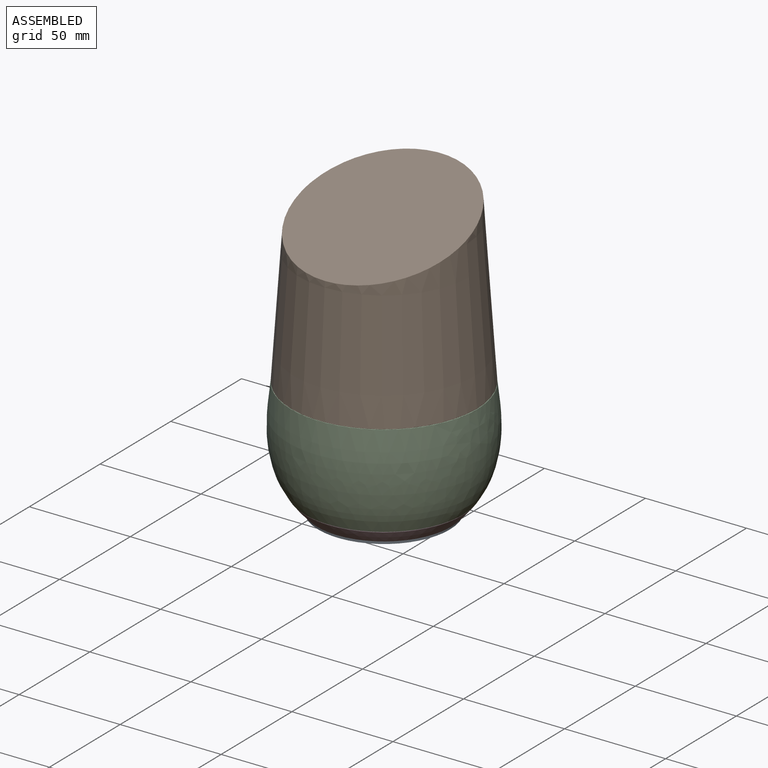
[diagram: assembled view]
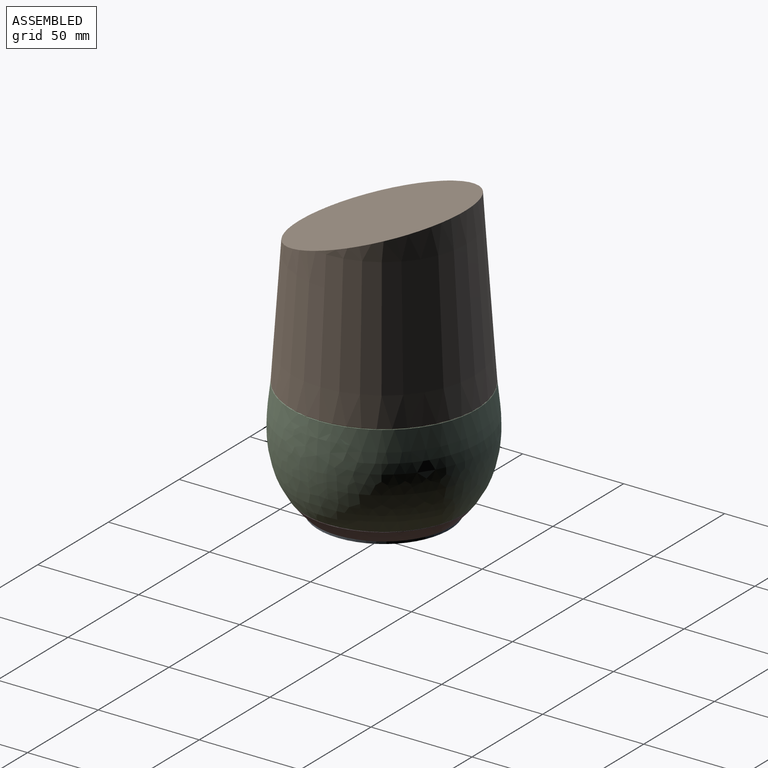
[diagram: assembled view, second angle]
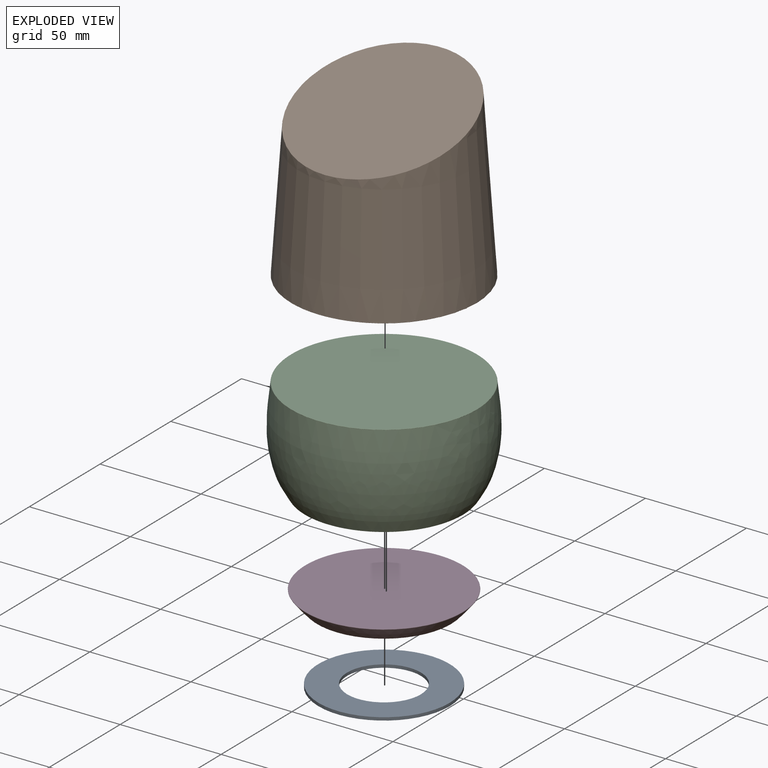
[diagram: exploded view]
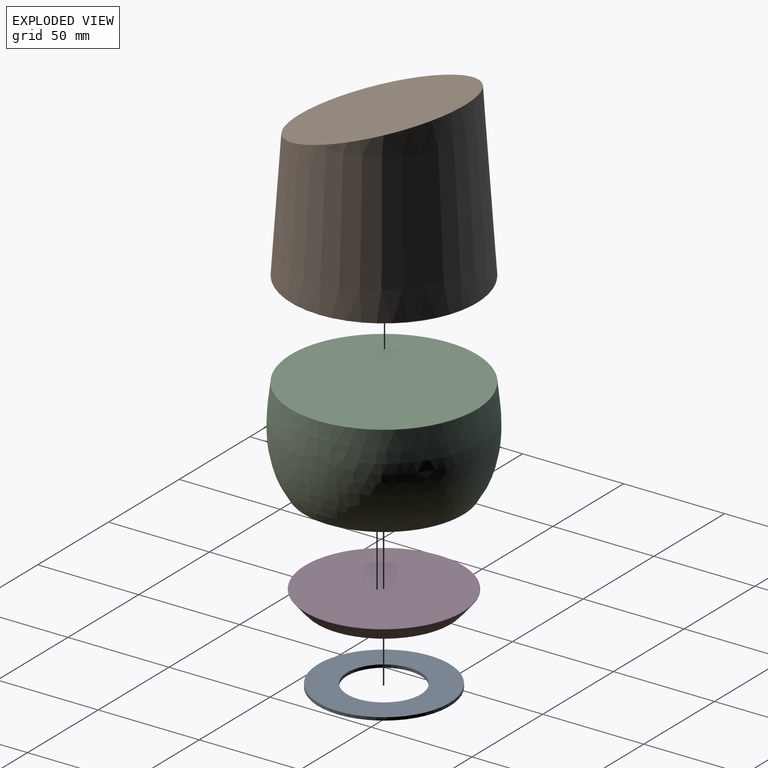
[diagram: exploded view, second angle]
ASSEMBLY  parts=4 mates=3
PART A: 4 faces, bbox 65x65x1.5 mm
  f0: cylinder r=18.25mm len=36.5mm, axis (0,0,-1), area 172mm2, adj f2,f3
  f1: cylinder r=32.5mm len=65mm, axis (0,0,-1), area 306.3mm2, adj f2,f3
  f2: plane 65x65mm, normal (0,0,1), area 2272mm2, adj f0,f1
  f3: plane 65x65mm, normal (0,0,-1), area 2272mm2, adj f0,f1
PART B: 4 faces, bbox 105.1x105.1x92.7 mm
  f0: cone r=46mm half-angle=3.9deg, axis (0,0,-1), area 20306.3mm2, adj f2,f3
  f1: plane 91.46x91.46mm, normal (0,0,-1), area 6570.4mm2, adj f3
  f2: plane 87.37x87.35mm, normal (0,-0.3,0.95), area 5512.2mm2, adj f0
  f3: torus R=45.73mm, axis (0,0,1), area 118.2mm2, adj f0,f1
PART C: 5 faces, bbox 95.2x95.3x49 mm
  f0: plane 91.58x91.57mm, normal (0,0,1), area 6582.1mm2, adj f4
  f1: bspline ~95.25x95.2mm, area 14505.1mm2, adj f3,f4
  f2: plane 78.26x78.24mm, normal (0,0,-1), area 4806.8mm2, adj f3
  f3: bspline ~78.68x78.65mm, area 58.5mm2, adj f1,f2
  f4: bspline ~92.08x92.07mm, area 104.3mm2, adj f0,f1
PART D: 4 faces, bbox 98.7x98.7x29.5 mm
  f0: plane 77.53x77.53mm, normal (0,0,1), area 4717.9mm2, adj f3
  f1: plane 66.5x66.5mm, normal (0,0,-1), area 3473mm2, adj f2
  f2: bspline ~98.67x98.67mm, area 1984.3mm2, adj f1,f3
  f3: bspline ~78.53x78.53mm, area 135.1mm2, adj f0,f2
PLACE A t=(20.56,35.83,5.25)mm
PLACE B t=(20.56,35.83,5.25)mm
PLACE C t=(20.56,35.83,5.25)mm
PLACE D t=(20.56,35.83,5.25)mm
MATE fastened C.f0 <-> B.f0  axis (0,0,1) through (20.56,35.83,62.75)mm
MATE fastened D.f0 <-> C.f2  axis (0,0,1) through (20.56,35.83,13.75)mm
MATE fastened A.f1 <-> D.f1  axis (0,0,1) through (20.56,35.83,6.75)mm
